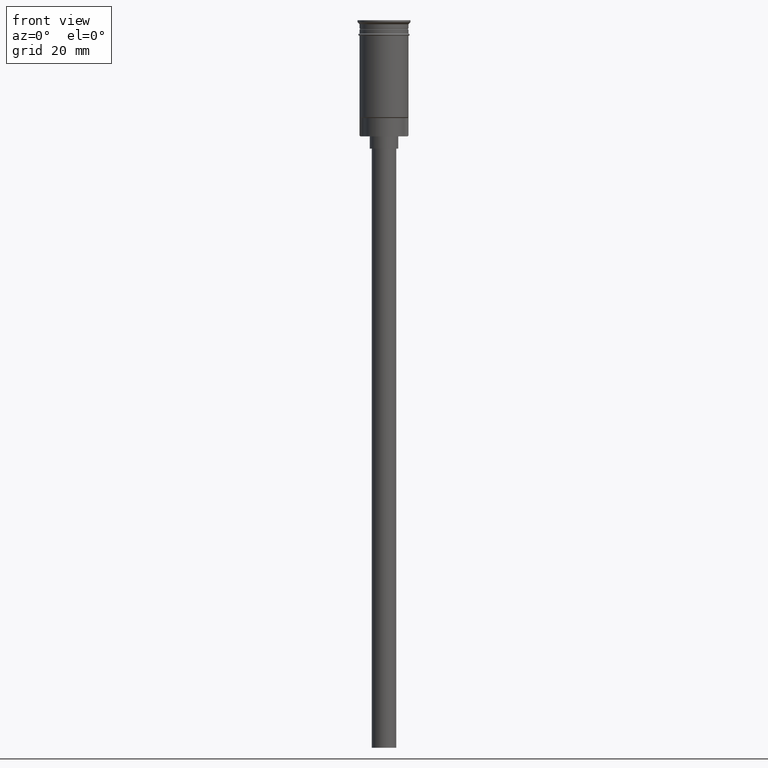
[diagram: clean part render]
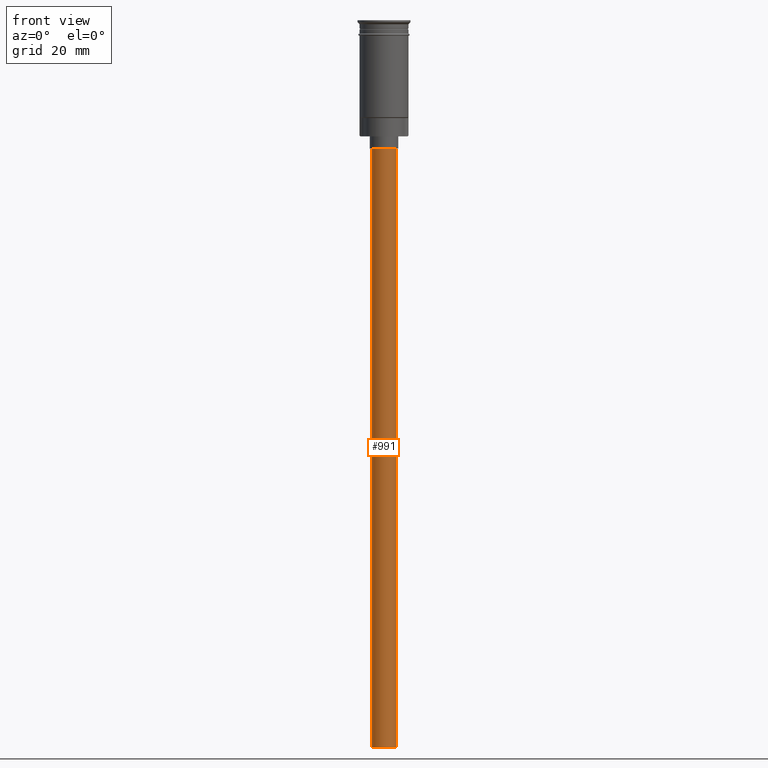
[diagram: same view with one face highlighted and labeled with its STEP entity id]
A machine part, front view. The second image highlights one B-rep face of the part: STEP entity #991.
In plain terms, the highlighted cylindrical surface (edge-blend (fillet) strip) has radius 3 mm, axis along (-0, -0, 1).
Its self-contained STEP definition (entity closure, byte-faithful):
#18 = CARTESIAN_POINT ( 'NONE',  ( -3.000000000000000444, 3.673940397442060361E-16, -31.50000000000000000 ) ) ;
#21 = CARTESIAN_POINT ( 'NONE',  ( 3.000000000000000444, 0.000000000000000000, -178.5000000000000000 ) ) ;
#30 = CARTESIAN_POINT ( 'NONE',  ( -3.000000000000000444, 3.673940397442060361E-16, -178.5000000000000000 ) ) ;
#62 = CYLINDRICAL_SURFACE ( 'NONE', #1218, 3.000000000000000444 ) ;
#142 = CARTESIAN_POINT ( 'NONE',  ( 3.000000000000000444, 0.000000000000000000, -31.50000000000000000 ) ) ;
#146 = DIRECTION ( 'NONE',  ( 0.000000000000000000, 0.000000000000000000, -1.000000000000000000 ) ) ;
#225 = ORIENTED_EDGE ( 'NONE', *, *, #1529, .T. ) ;
#274 = EDGE_CURVE ( 'NONE', #1482, #532, #649, .T. ) ;
#420 = CARTESIAN_POINT ( 'NONE',  ( 0.000000000000000000, 0.000000000000000000, -178.5000000000000000 ) ) ;
#432 = EDGE_CURVE ( 'NONE', #1482, #1580, #1379, .T. ) ;
#450 = EDGE_CURVE ( 'NONE', #532, #1603, #1130, .T. ) ;
#492 = DIRECTION ( 'NONE',  ( -0.000000000000000000, -0.000000000000000000, 1.000000000000000000 ) ) ;
#511 = VECTOR ( 'NONE', #492, 1000.000000000000000 ) ;
#532 = VERTEX_POINT ( 'NONE', #795 ) ;
#549 = ORIENTED_EDGE ( 'NONE', *, *, #274, .F. ) ;
#615 = DIRECTION ( 'NONE',  ( -1.000000000000000000, 0.000000000000000000, 0.000000000000000000 ) ) ;
#649 = CIRCLE ( 'NONE', #863, 3.000000000000000444 ) ;
#658 = CARTESIAN_POINT ( 'NONE',  ( 0.000000000000000000, 0.000000000000000000, -178.5000000000000000 ) ) ;
#673 = ORIENTED_EDGE ( 'NONE', *, *, #450, .F. ) ;
#701 = EDGE_LOOP ( 'NONE', ( #673, #549, #967, #225 ) ) ;
#795 = CARTESIAN_POINT ( 'NONE',  ( -3.000000000000000444, 3.673940397442060361E-16, -178.5000000000000000 ) ) ;
#797 = DIRECTION ( 'NONE',  ( 1.000000000000000000, 0.000000000000000000, 0.000000000000000000 ) ) ;
#863 = AXIS2_PLACEMENT_3D ( 'NONE', #658, #1521, #1410 ) ;
#967 = ORIENTED_EDGE ( 'NONE', *, *, #432, .T. ) ;
#991 = ADVANCED_FACE ( 'NONE', ( #1163 ), #62, .T. ) ;
#1001 = CARTESIAN_POINT ( 'NONE',  ( 0.000000000000000000, 0.000000000000000000, -31.50000000000000000 ) ) ;
#1005 = DIRECTION ( 'NONE',  ( -0.000000000000000000, -0.000000000000000000, 1.000000000000000000 ) ) ;
#1048 = DIRECTION ( 'NONE',  ( -0.000000000000000000, -0.000000000000000000, 1.000000000000000000 ) ) ;
#1070 = CIRCLE ( 'NONE', #1540, 3.000000000000000444 ) ;
#1130 = LINE ( 'NONE', #30, #1267 ) ;
#1163 = FACE_OUTER_BOUND ( 'NONE', #701, .T. ) ;
#1218 = AXIS2_PLACEMENT_3D ( 'NONE', #420, #1048, #797 ) ;
#1267 = VECTOR ( 'NONE', #1005, 1000.000000000000000 ) ;
#1316 = CARTESIAN_POINT ( 'NONE',  ( 3.000000000000000444, 0.000000000000000000, -178.5000000000000000 ) ) ;
#1379 = LINE ( 'NONE', #21, #511 ) ;
#1410 = DIRECTION ( 'NONE',  ( -1.000000000000000000, 0.000000000000000000, 0.000000000000000000 ) ) ;
#1482 = VERTEX_POINT ( 'NONE', #1316 ) ;
#1521 = DIRECTION ( 'NONE',  ( 0.000000000000000000, 0.000000000000000000, -1.000000000000000000 ) ) ;
#1529 = EDGE_CURVE ( 'NONE', #1580, #1603, #1070, .T. ) ;
#1540 = AXIS2_PLACEMENT_3D ( 'NONE', #1001, #146, #615 ) ;
#1580 = VERTEX_POINT ( 'NONE', #142 ) ;
#1603 = VERTEX_POINT ( 'NONE', #18 ) ;